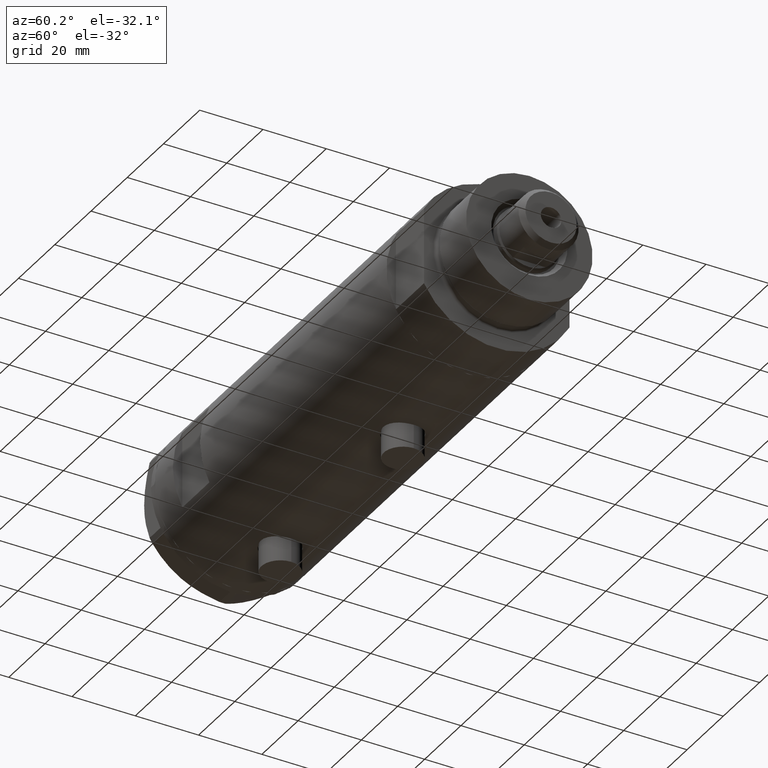
[diagram: clean part render]
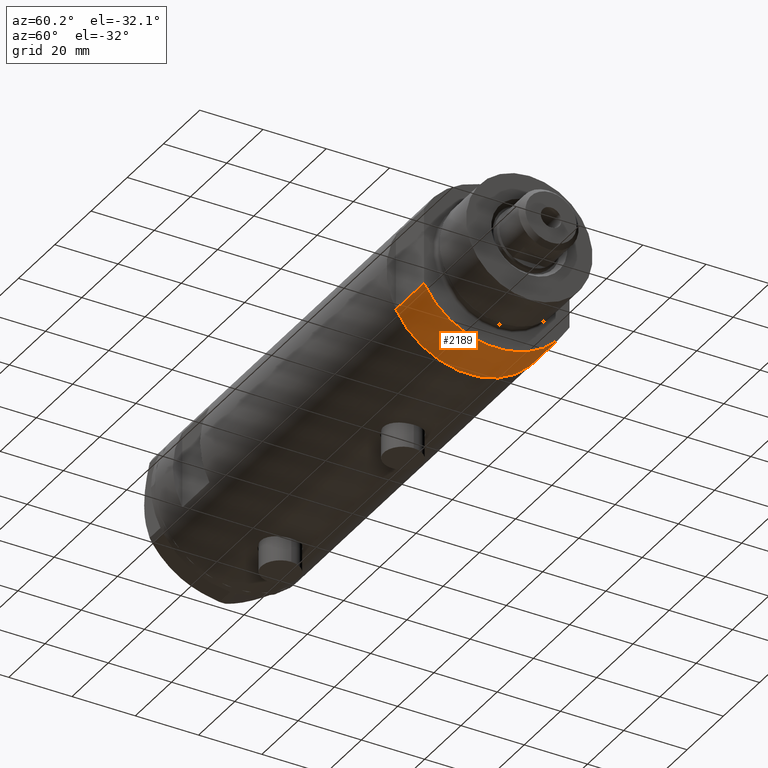
[diagram: same view with one face highlighted and labeled with its STEP entity id]
A machine part, auxiliary view. The second image highlights one B-rep face of the part: STEP entity #2189.
In plain terms, the highlighted cylindrical surface (partial cylindrical patch) has radius 26 mm, axis along (-1, -0, 0).
Its self-contained STEP definition (entity closure, byte-faithful):
#48 = ORIENTED_EDGE ( 'NONE', *, *, #1489, .T. ) ;
#83 = CARTESIAN_POINT ( 'NONE',  ( 12.12435565298214790, 23.00000000000000355, 15.50000000000000000 ) ) ;
#207 = DIRECTION ( 'NONE',  ( 1.000000000000000000, 0.000000000000000000, 0.000000000000000000 ) ) ;
#324 = CARTESIAN_POINT ( 'NONE',  ( 12.12435565298215323, -22.99999999999999645, 0.000000000000000000 ) ) ;
#332 = VERTEX_POINT ( 'NONE', #2293 ) ;
#368 = DIRECTION ( 'NONE',  ( -0.000000000000000000, -0.000000000000000000, -1.000000000000000000 ) ) ;
#423 = DIRECTION ( 'NONE',  ( -0.000000000000000000, -0.000000000000000000, 1.000000000000000000 ) ) ;
#585 = CARTESIAN_POINT ( 'NONE',  ( 0.000000000000000000, 0.000000000000000000, 0.000000000000000000 ) ) ;
#643 = VERTEX_POINT ( 'NONE', #3167 ) ;
#703 = DIRECTION ( 'NONE',  ( 1.000000000000000000, 0.000000000000000000, 0.000000000000000000 ) ) ;
#780 = CIRCLE ( 'NONE', #1081, 26.00000000000000355 ) ;
#861 = VECTOR ( 'NONE', #4380, 1000.000000000000000 ) ;
#1048 = LINE ( 'NONE', #3662, #861 ) ;
#1081 = AXIS2_PLACEMENT_3D ( 'NONE', #585, #3586, #207 ) ;
#1230 = VERTEX_POINT ( 'NONE', #324 ) ;
#1267 = EDGE_CURVE ( 'NONE', #332, #4295, #4386, .T. ) ;
#1489 = EDGE_CURVE ( 'NONE', #643, #4295, #4782, .T. ) ;
#1616 = ORIENTED_EDGE ( 'NONE', *, *, #1267, .F. ) ;
#1808 = CARTESIAN_POINT ( 'NONE',  ( 12.12435565298215323, 23.00000000000000355, 0.000000000000000000 ) ) ;
#1839 = DIRECTION ( 'NONE',  ( -1.000000000000000000, 0.000000000000000000, 0.000000000000000000 ) ) ;
#2189 = ADVANCED_FACE ( 'NONE', ( #3324 ), #3740, .T. ) ;
#2240 = CARTESIAN_POINT ( 'NONE',  ( 0.000000000000000000, 0.000000000000000000, 15.50000000000000000 ) ) ;
#2293 = CARTESIAN_POINT ( 'NONE',  ( 12.12435565298215323, -22.99999999999999645, 15.50000000000000000 ) ) ;
#2561 = DIRECTION ( 'NONE',  ( 0.000000000000000000, 0.000000000000000000, 1.000000000000000000 ) ) ;
#3039 = VECTOR ( 'NONE', #423, 1000.000000000000000 ) ;
#3167 = CARTESIAN_POINT ( 'NONE',  ( 12.12435565298214080, 23.00000000000000355, 0.000000000000000000 ) ) ;
#3201 = EDGE_CURVE ( 'NONE', #1230, #332, #1048, .T. ) ;
#3206 = AXIS2_PLACEMENT_3D ( 'NONE', #2240, #368, #1839 ) ;
#3324 = FACE_OUTER_BOUND ( 'NONE', #4248, .T. ) ;
#3586 = DIRECTION ( 'NONE',  ( 0.000000000000000000, 0.000000000000000000, 1.000000000000000000 ) ) ;
#3642 = ORIENTED_EDGE ( 'NONE', *, *, #3201, .F. ) ;
#3662 = CARTESIAN_POINT ( 'NONE',  ( 12.12435565298215323, -22.99999999999999645, 0.000000000000000000 ) ) ;
#3702 = CARTESIAN_POINT ( 'NONE',  ( 0.000000000000000000, 0.000000000000000000, 15.50000000000000000 ) ) ;
#3740 = CYLINDRICAL_SURFACE ( 'NONE', #3206, 26.00000000000000355 ) ;
#3742 = EDGE_CURVE ( 'NONE', #1230, #643, #780, .T. ) ;
#3922 = AXIS2_PLACEMENT_3D ( 'NONE', #3702, #2561, #703 ) ;
#3983 = ORIENTED_EDGE ( 'NONE', *, *, #3742, .T. ) ;
#4248 = EDGE_LOOP ( 'NONE', ( #1616, #3642, #3983, #48 ) ) ;
#4295 = VERTEX_POINT ( 'NONE', #83 ) ;
#4380 = DIRECTION ( 'NONE',  ( -0.000000000000000000, -0.000000000000000000, 1.000000000000000000 ) ) ;
#4386 = CIRCLE ( 'NONE', #3922, 26.00000000000000355 ) ;
#4782 = LINE ( 'NONE', #1808, #3039 ) ;